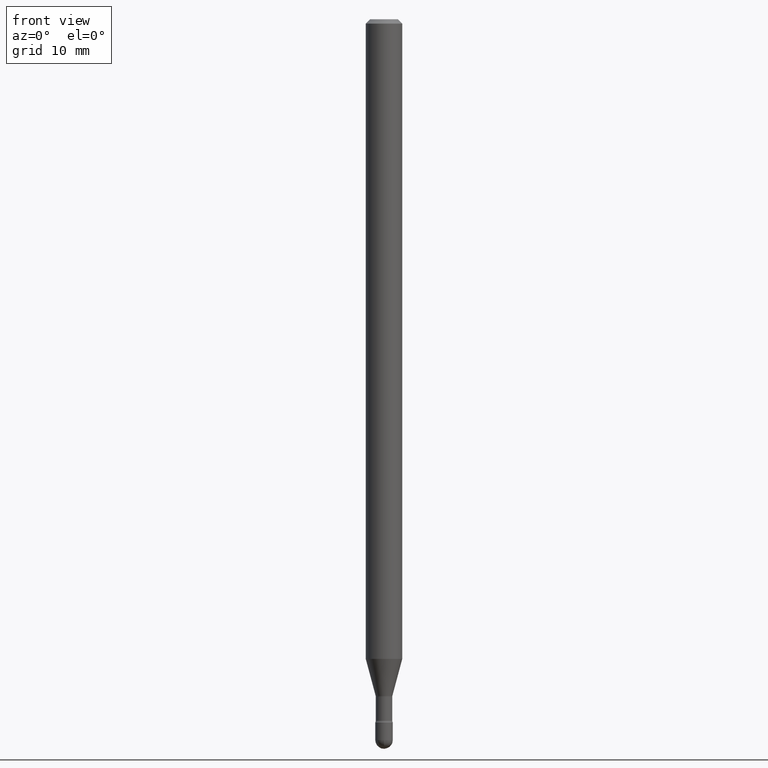
[diagram: clean part render]
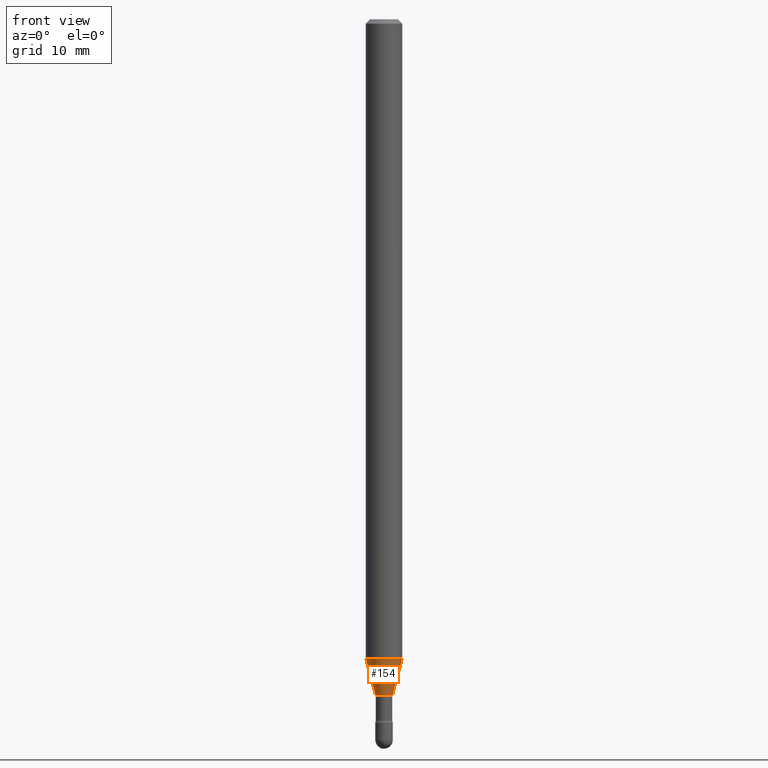
[diagram: same view with one face highlighted and labeled with its STEP entity id]
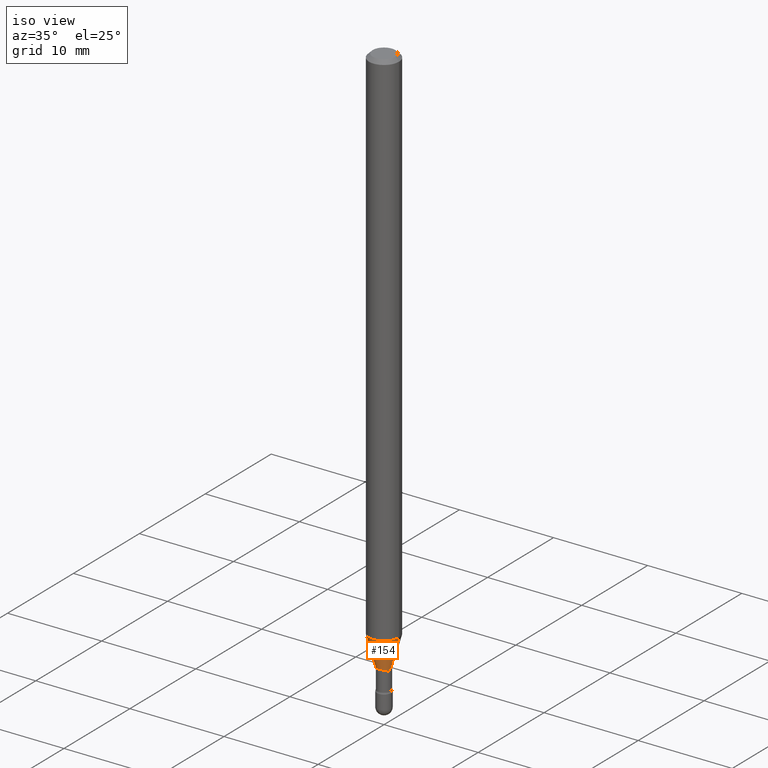
[diagram: same view with one face highlighted and labeled with its STEP entity id]
A machine part, front view. The second image highlights one B-rep face of the part: STEP entity #154.
A second angle (iso view) of the same face is appended — the face is thin or edge-on in the first view.
In plain terms, the highlighted conical surface has half-angle 15 deg.
Its self-contained STEP definition (entity closure, byte-faithful):
#8 = LINE ( 'NONE', #128, #164 ) ;
#25 = ORIENTED_EDGE ( 'NONE', *, *, #453, .T. ) ;
#29 = AXIS2_PLACEMENT_3D ( 'NONE', #48, #291, #474 ) ;
#48 = CARTESIAN_POINT ( 'NONE',  ( 5.668822902972440230E-29, -8.093576711702486341E-15, -2.318092501787273108 ) ) ;
#50 = DIRECTION ( 'NONE',  ( 0.2588190451025213501, 1.565188264969621968E-15, 0.9659258262890682012 ) ) ;
#77 = EDGE_CURVE ( 'NONE', #370, #155, #8, .T. ) ;
#85 = CARTESIAN_POINT ( 'NONE',  ( -0.06250000000000000000, -7.209205265032763284E-15, -2.191990657300388001 ) ) ;
#103 = CONICAL_SURFACE ( 'NONE', #29, 0.02871111260566397427, 0.2617993877991500740 ) ;
#123 = FACE_OUTER_BOUND ( 'NONE', #502, .T. ) ;
#128 = CARTESIAN_POINT ( 'NONE',  ( -0.02871111260566397427, -7.889571986727037961E-15, -2.318092501787273108 ) ) ;
#129 = DIRECTION ( 'NONE',  ( 1.000000000000000000, -6.982962677686262766E-15, 0.000000000000000000 ) ) ;
#154 = ADVANCED_FACE ( 'NONE', ( #123 ), #103, .T. ) ;
#155 = VERTEX_POINT ( 'NONE', #85 ) ;
#164 = VECTOR ( 'NONE', #294, 39.37007874015747433 ) ;
#179 = CARTESIAN_POINT ( 'NONE',  ( -0.02871111260566397427, -7.549388625879900623E-15, -2.318092501787273108 ) ) ;
#189 = CIRCLE ( 'NONE', #473, 0.06250000000000000000 ) ;
#192 = EDGE_CURVE ( 'NONE', #370, #366, #201, .T. ) ;
#201 = CIRCLE ( 'NONE', #529, 0.02871111260566397427 ) ;
#220 = VECTOR ( 'NONE', #50, 39.37007874015747433 ) ;
#248 = DIRECTION ( 'NONE',  ( 1.000000000000000000, -6.982962677686280121E-15, 0.000000000000000000 ) ) ;
#261 = DIRECTION ( 'NONE',  ( -2.445468806185136597E-29, 3.491481338843145583E-15, 1.000000000000000000 ) ) ;
#291 = DIRECTION ( 'NONE',  ( -2.445468806185136597E-29, 3.491481338843145583E-15, 1.000000000000000000 ) ) ;
#294 = DIRECTION ( 'NONE',  ( -0.2588190451025213501, 5.211531920934551042E-15, 0.9659258262890682012 ) ) ;
#304 = CARTESIAN_POINT ( 'NONE',  ( 0.02871111260566397427, -8.294065339462685090E-15, -2.318092501787273108 ) ) ;
#317 = CARTESIAN_POINT ( 'NONE',  ( 0.06250000000000000000, -8.089729642238217570E-15, -2.191990657300388001 ) ) ;
#341 = ORIENTED_EDGE ( 'NONE', *, *, #77, .F. ) ;
#366 = VERTEX_POINT ( 'NONE', #304 ) ;
#369 = EDGE_CURVE ( 'NONE', #155, #544, #189, .T. ) ;
#370 = VERTEX_POINT ( 'NONE', #179 ) ;
#383 = CARTESIAN_POINT ( 'NONE',  ( 5.668822902972440230E-29, -8.093576711702486341E-15, -2.318092501787273108 ) ) ;
#403 = CARTESIAN_POINT ( 'NONE',  ( 0.02871111260566397427, -8.294065339462685090E-15, -2.318092501787273108 ) ) ;
#442 = CARTESIAN_POINT ( 'NONE',  ( 5.360444775877352229E-29, -7.653294474882825901E-15, -2.191990657300388001 ) ) ;
#453 = EDGE_CURVE ( 'NONE', #366, #544, #530, .T. ) ;
#473 = AXIS2_PLACEMENT_3D ( 'NONE', #442, #261, #129 ) ;
#474 = DIRECTION ( 'NONE',  ( 1.000000000000000000, -6.982962677686280121E-15, 0.000000000000000000 ) ) ;
#488 = ORIENTED_EDGE ( 'NONE', *, *, #192, .T. ) ;
#502 = EDGE_LOOP ( 'NONE', ( #341, #488, #25, #507 ) ) ;
#507 = ORIENTED_EDGE ( 'NONE', *, *, #369, .F. ) ;
#518 = DIRECTION ( 'NONE',  ( -2.445468806185136597E-29, 3.491481338843145583E-15, 1.000000000000000000 ) ) ;
#529 = AXIS2_PLACEMENT_3D ( 'NONE', #383, #518, #248 ) ;
#530 = LINE ( 'NONE', #403, #220 ) ;
#544 = VERTEX_POINT ( 'NONE', #317 ) ;